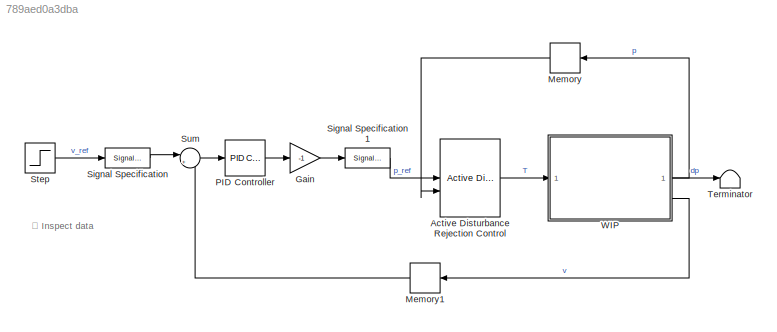
MODEL slx_789aed0a3dba
KIND model
CONFIG AbsTol = 1e-3
CONFIG EnableMultiTasking = off
CONFIG FixedStep = auto
CONFIG MaxStep = 1e-3
CONFIG MinStep = auto
CONFIG RelTol = 1e-3
CONFIG SampleTimeConstraint = Unconstrained
CONFIG SolverName = ode23t
CONFIG StartTime = 0.0
CONFIG StopTime = 10.0
BLOCK [Reference] Active Disturbance Rejection Control  REF=slctrl_adaptive/Active Disturbance Rejection Control
  LibrarySourceBlock = slctrlblks/Adaptive Control/Active Disturbance Rejection Control
  SourceBlock = slctrl_adaptive/Active Disturbance Rejection Control
  SourceType = Active Disturbance Rejection Control (ADRC)
BLOCK [Gain] Gain
  Gain = -1
BLOCK [Memory] Memory
  InheritSampleTime = on
  InitialCondition = p0
  LinearizeAsDelay = on
  LinearizeMemory = on
BLOCK [Memory] Memory1
  InheritSampleTime = on
  LinearizeAsDelay = on
  LinearizeMemory = on
BLOCK [Reference] PID Controller  REF=slpidlib/PID Controller
  LibrarySourceBlock = simulink/Continuous/PID Controller
  SourceBlock = slpidlib/PID Controller
  SourceType = PID 1dof
BLOCK [SignalSpecification] Signal Specification
  Unit = m/s
BLOCK [SignalSpecification] Signal Specification1
  Unit = deg
BLOCK [Step] Step
  SampleTime = 0
BLOCK [Sum] Sum
  Inputs = |+-
BLOCK [Terminator] Terminator
BLOCK [SubSystem] WIP
  ReferencedSubsystem = WIP
ANNOTATION (root): 📈 Inspect data
LINE Active Disturbance Rejection Control:1 -> WIP:1
LINE Gain:1 -> Signal Specification1:1
LINE Memory1:1 -> Sum:2
LINE Memory:1 -> Active Disturbance Rejection Control:2
LINE PID Controller:1 -> Gain:1
LINE Signal Specification1:1 -> Active Disturbance Rejection Control:1
LINE Signal Specification:1 -> Sum:1
LINE Step:1 -> Signal Specification:1
LINE Sum:1 -> PID Controller:1
LINE WIP:1 -> Memory:1
LINE WIP:2 -> Terminator:1
LINE WIP:3 -> Memory1:1
